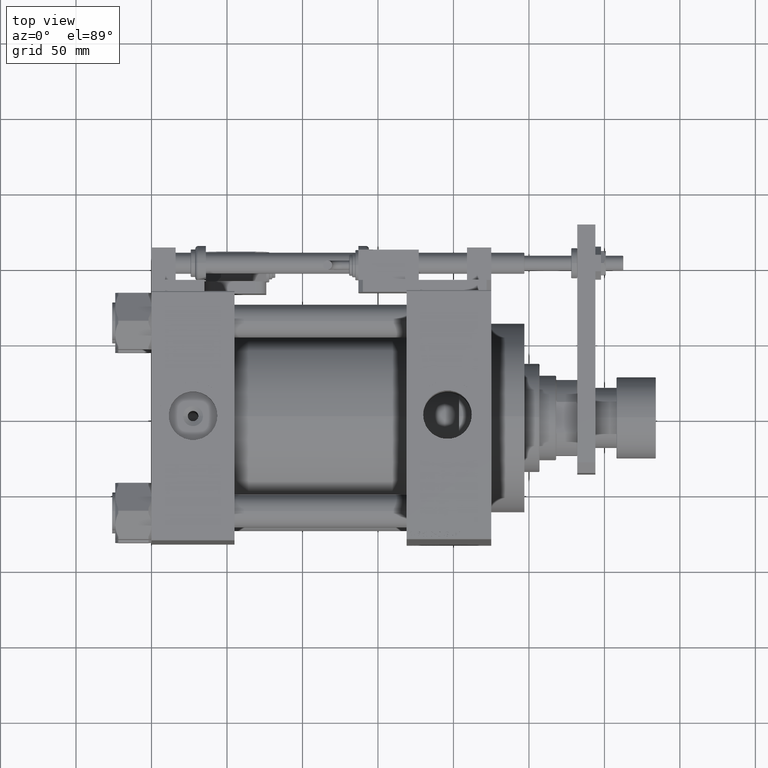
[diagram: clean part render]
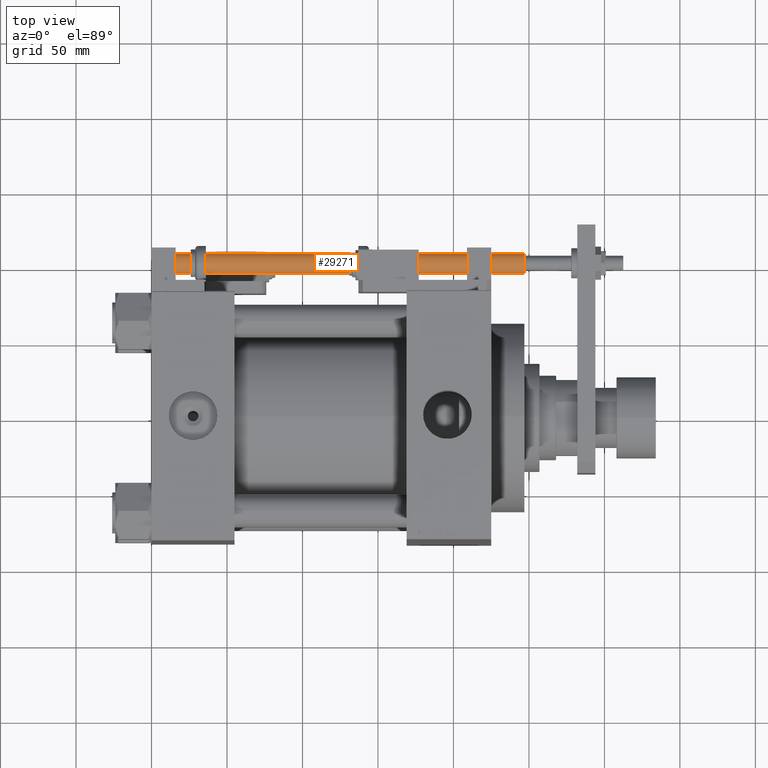
[diagram: same view with one face highlighted and labeled with its STEP entity id]
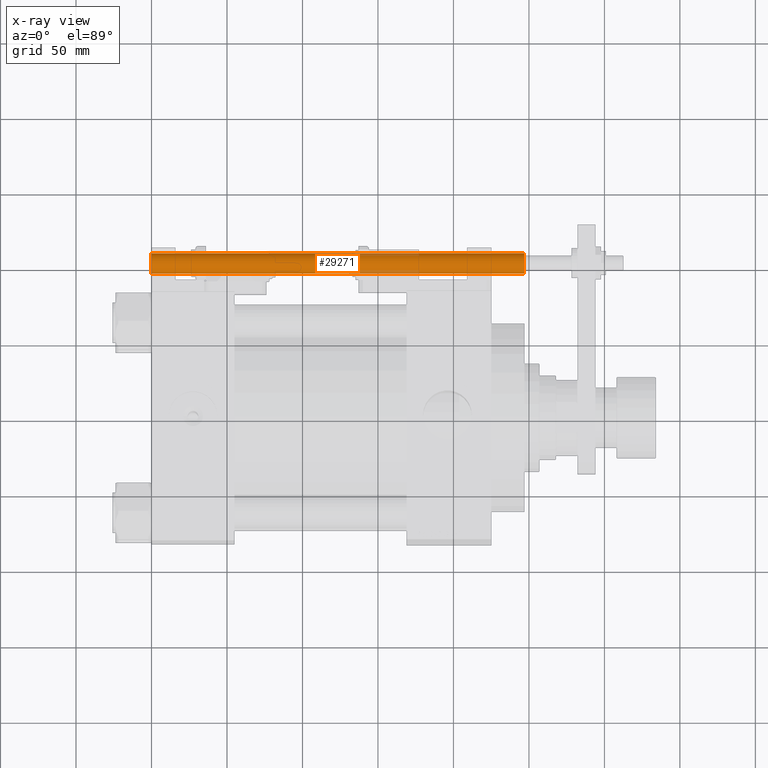
[diagram: x-ray of the same camera — body ghosted, the highlighted face saturated]
A machine part, top view. The second image highlights one B-rep face of the part: STEP entity #29271.
The next image is the same camera in x-ray: the body ghosted, the highlighted face saturated — about 5% of this face is hidden behind the body in this view.
In plain terms, the highlighted cylindrical surface (edge-blend (fillet) strip) has radius 7 mm, axis along (1, -0, 0).
Its self-contained STEP definition (entity closure, byte-faithful):
#3584 = CARTESIAN_POINT ( 'NONE',  ( 0.000000000000000000, 0.000000000000000000, 0.3000000000000502265 ) ) ;
#3717 = ORIENTED_EDGE ( 'NONE', *, *, #40400, .F. ) ;
#4257 = EDGE_LOOP ( 'NONE', ( #23896, #3717, #26134, #49894 ) ) ;
#4943 = VERTEX_POINT ( 'NONE', #9076 ) ;
#6001 = LINE ( 'NONE', #47401, #16178 ) ;
#7731 = DIRECTION ( 'NONE',  ( -1.000000000000000000, 0.000000000000000000, 0.000000000000000000 ) ) ;
#8780 = LINE ( 'NONE', #37910, #53777 ) ;
#8811 = AXIS2_PLACEMENT_3D ( 'NONE', #20258, #40944, #7731 ) ;
#8899 = DIRECTION ( 'NONE',  ( 1.000000000000000000, 0.000000000000000000, 0.000000000000000000 ) ) ;
#9076 = CARTESIAN_POINT ( 'NONE',  ( 7.000000000000000000, 8.572527594031473190E-16, 247.0000000000000000 ) ) ;
#10082 = AXIS2_PLACEMENT_3D ( 'NONE', #34785, #21967, #8899 ) ;
#13694 = AXIS2_PLACEMENT_3D ( 'NONE', #3584, #15872, #49873 ) ;
#14326 = EDGE_CURVE ( 'NONE', #4943, #27671, #8780, .T. ) ;
#15872 = DIRECTION ( 'NONE',  ( -0.000000000000000000, -0.000000000000000000, 1.000000000000000000 ) ) ;
#16178 = VECTOR ( 'NONE', #29965, 1000.000000000000000 ) ;
#17767 = DIRECTION ( 'NONE',  ( -0.000000000000000000, -0.000000000000000000, -1.000000000000000000 ) ) ;
#20258 = CARTESIAN_POINT ( 'NONE',  ( 0.000000000000000000, 0.000000000000000000, 247.0000000000000000 ) ) ;
#21967 = DIRECTION ( 'NONE',  ( 0.000000000000000000, 0.000000000000000000, 1.000000000000000000 ) ) ;
#22583 = VERTEX_POINT ( 'NONE', #43207 ) ;
#23896 = ORIENTED_EDGE ( 'NONE', *, *, #14326, .F. ) ;
#24730 = CARTESIAN_POINT ( 'NONE',  ( 7.000000000000000000, 8.572527594031473190E-16, 0.3000000000000502265 ) ) ;
#26134 = ORIENTED_EDGE ( 'NONE', *, *, #53087, .T. ) ;
#27671 = VERTEX_POINT ( 'NONE', #24730 ) ;
#29271 = ADVANCED_FACE ( 'NONE', ( #52951 ), #45037, .T. ) ;
#29965 = DIRECTION ( 'NONE',  ( -0.000000000000000000, -0.000000000000000000, -1.000000000000000000 ) ) ;
#30932 = CIRCLE ( 'NONE', #10082, 7.000000000000000000 ) ;
#34785 = CARTESIAN_POINT ( 'NONE',  ( 0.000000000000000000, 0.000000000000000000, 247.0000000000000000 ) ) ;
#37910 = CARTESIAN_POINT ( 'NONE',  ( 7.000000000000000000, 8.572527594031473190E-16, 247.0000000000000000 ) ) ;
#38030 = CIRCLE ( 'NONE', #13694, 7.000000000000000000 ) ;
#38816 = VERTEX_POINT ( 'NONE', #40886 ) ;
#40400 = EDGE_CURVE ( 'NONE', #38816, #4943, #30932, .T. ) ;
#40886 = CARTESIAN_POINT ( 'NONE',  ( -7.000000000000000000, 0.000000000000000000, 247.0000000000000000 ) ) ;
#40944 = DIRECTION ( 'NONE',  ( -0.000000000000000000, -0.000000000000000000, -1.000000000000000000 ) ) ;
#43207 = CARTESIAN_POINT ( 'NONE',  ( -7.000000000000000000, 0.000000000000000000, 0.3000000000000502265 ) ) ;
#44180 = EDGE_CURVE ( 'NONE', #22583, #27671, #38030, .T. ) ;
#45037 = CYLINDRICAL_SURFACE ( 'NONE', #8811, 7.000000000000000000 ) ;
#47401 = CARTESIAN_POINT ( 'NONE',  ( -7.000000000000000000, 0.000000000000000000, 247.0000000000000000 ) ) ;
#49873 = DIRECTION ( 'NONE',  ( 1.000000000000000000, 0.000000000000000000, 0.000000000000000000 ) ) ;
#49894 = ORIENTED_EDGE ( 'NONE', *, *, #44180, .T. ) ;
#52951 = FACE_OUTER_BOUND ( 'NONE', #4257, .T. ) ;
#53087 = EDGE_CURVE ( 'NONE', #38816, #22583, #6001, .T. ) ;
#53777 = VECTOR ( 'NONE', #17767, 1000.000000000000000 ) ;